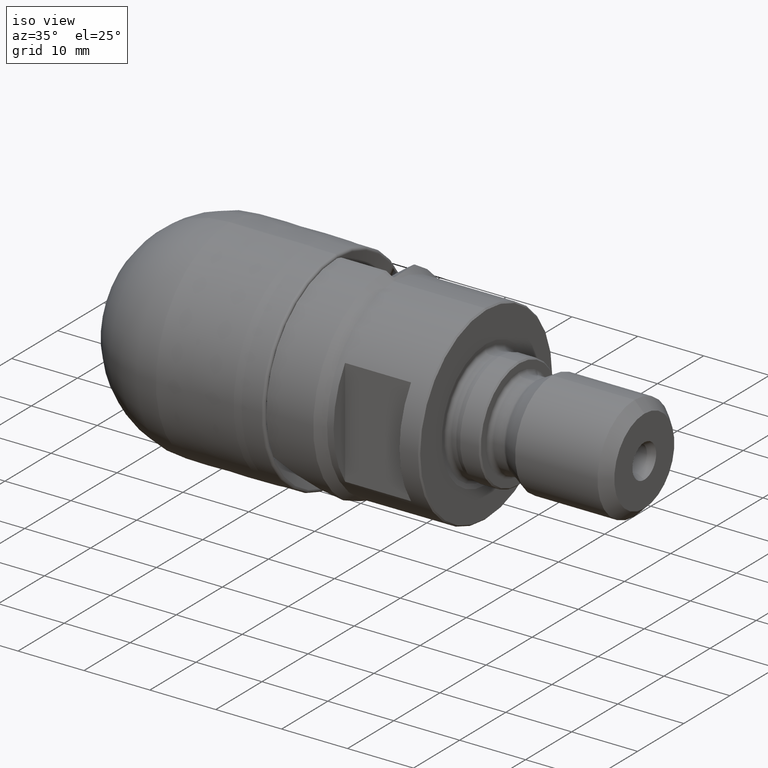
[diagram: clean part render]
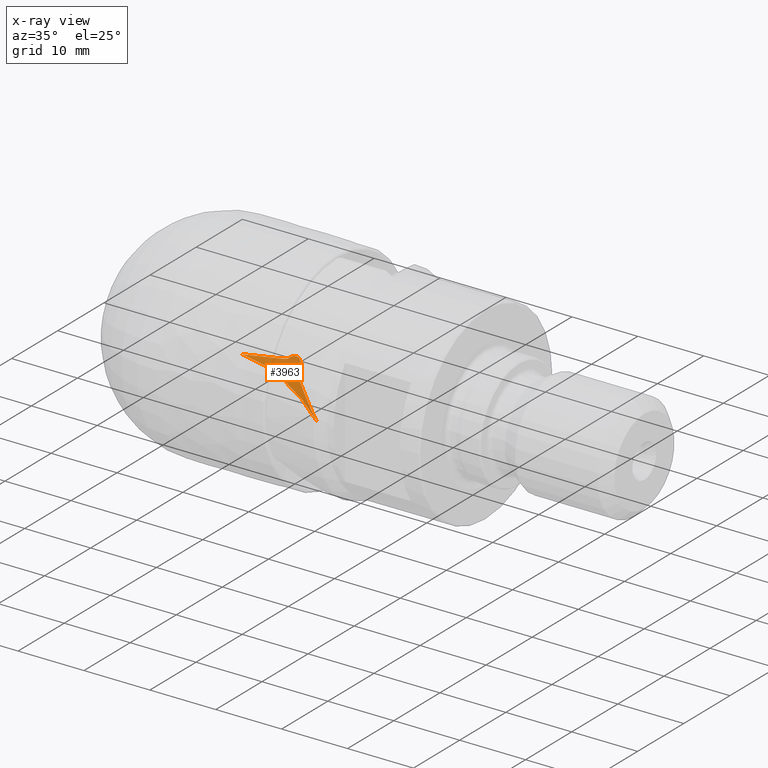
[diagram: x-ray — body ghosted, one internal face saturated and labeled with its STEP entity id]
A machine part, iso view, then the same camera in x-ray: the body is ghosted and one INTERNAL B-rep face — a face not visible from any outside direction — is saturated and labeled: STEP entity #3963.
In plain terms, the highlighted toroidal blend (fillet) surface has major radius 17.4608 mm and minor (blend) radius 15.8368 mm.
Its self-contained STEP definition (entity closure, byte-faithful):
#16 = CARTESIAN_POINT ( 'NONE',  ( 17.55565429103573294, 2.769534820510932249, -1.556511194266540610 ) ) ;
#65 = CARTESIAN_POINT ( 'NONE',  ( 13.00230363450138604, 0.4714883554706232327, -1.726817155689019501 ) ) ;
#85 = CARTESIAN_POINT ( 'NONE',  ( 17.25919833583427376, 2.442017771030029039, -1.807092347605215643 ) ) ;
#94 = DIRECTION ( 'NONE',  ( 0.0000000000000000000, -1.224646799147353207E-16, 1.000000000000000000 ) ) ;
#202 = CARTESIAN_POINT ( 'NONE',  ( 18.67776587723828641, 3.080988855967265128, -2.175901990318079182 ) ) ;
#212 = AXIS2_PLACEMENT_3D ( 'NONE', #3130, #3566, #94 ) ;
#260 = AXIS2_PLACEMENT_3D ( 'NONE', #1811, #1409, #2213 ) ;
#333 = CARTESIAN_POINT ( 'NONE',  ( 18.58401090703475589, 2.207001648660439574, -2.990069219774636355 ) ) ;
#337 = CARTESIAN_POINT ( 'NONE',  ( 17.98095912093262072, 3.043725441351983640, -1.485734467970545980 ) ) ;
#377 = CARTESIAN_POINT ( 'NONE',  ( 22.99824632191460694, 0.02635431146090463569, -7.443201034852172882 ) ) ;
#441 = CIRCLE ( 'NONE', #212, 15.83680652280630063 ) ;
#481 = CARTESIAN_POINT ( 'NONE',  ( 12.04930714525321989, -6.121626976022308307E-15, -1.680062948939793799 ) ) ;
#497 = CARTESIAN_POINT ( 'NONE',  ( 18.56713936065415993, 2.375370803855971324, -2.847542266732534966 ) ) ;
#545 = B_SPLINE_CURVE_WITH_KNOTS ( 'NONE', 3,
 ( #1271, #497, #1651, #2785, #1327, #2448, #202, #3966, #4310, #909 ),
 .UNSPECIFIED., .F., .F.,
 ( 4, 2, 2, 2, 4 ),
 ( 0.0001005699000597476720, 0.0005232917368739167579, 0.0009460135736880858574, 0.001368735410502254848, 0.001791457247316424056 ),
 .UNSPECIFIED. ) ;
#664 = TOROIDAL_SURFACE ( 'NONE', #260, 17.46083097347531066, 15.83680652280630063 ) ;
#786 = CARTESIAN_POINT ( 'NONE',  ( 17.38679587050087605, 2.612566696091439766, -1.663814258880377484 ) ) ;
#814 = CARTESIAN_POINT ( 'NONE',  ( 13.98551924463395224, 0.8824476089024586578, -1.754757986407633030 ) ) ;
#909 = CARTESIAN_POINT ( 'NONE',  ( 18.41075823380608512, 3.193053430549289473, -1.700868676920151978 ) ) ;
#1271 = CARTESIAN_POINT ( 'NONE',  ( 18.52737216682393040, 2.255657355766715444, -2.911768340376138298 ) ) ;
#1327 = CARTESIAN_POINT ( 'NONE',  ( 18.68076994880007646, 2.816629397455971962, -2.511929216957962563 ) ) ;
#1336 = EDGE_CURVE ( 'NONE', #1781, #4835, #441, .T. ) ;
#1386 = FACE_OUTER_BOUND ( 'NONE', #4726, .T. ) ;
#1409 = DIRECTION ( 'NONE',  ( -1.000000000000000000, -0.0000000000000000000, -0.0000000000000000000 ) ) ;
#1429 = CARTESIAN_POINT ( 'NONE',  ( 18.52737216682393040, 2.255657355766715444, -2.911768340376138298 ) ) ;
#1453 = CARTESIAN_POINT ( 'NONE',  ( 18.69415798215651137, 2.099414229999999826, -3.142343313673984451 ) ) ;
#1552 = B_SPLINE_CURVE_WITH_KNOTS ( 'NONE', 3,
 ( #2598, #1863, #3791, #2241 ),
 .UNSPECIFIED., .F., .F.,
 ( 4, 4 ),
 ( 3.808997781701988480E-07, 0.0006510057303477030698 ),
 .UNSPECIFIED. ) ;
#1651 = CARTESIAN_POINT ( 'NONE',  ( 18.60280525249420691, 2.490757344062767054, -2.774880363769625546 ) ) ;
#1781 = VERTEX_POINT ( 'NONE', #4036 ) ;
#1811 = CARTESIAN_POINT ( 'NONE',  ( 10.71821684155568022, 0.0000000000000000000, 0.0000000000000000000 ) ) ;
#1855 = CARTESIAN_POINT ( 'NONE',  ( 18.69415798215651137, 2.099414229999999826, -3.142343313673984451 ) ) ;
#1863 = CARTESIAN_POINT ( 'NONE',  ( 16.89194958320560858, 2.213288937172178006, -1.837931086989462948 ) ) ;
#1895 = EDGE_CURVE ( 'NONE', #3707, #2432, #3857, .T. ) ;
#1907 = CARTESIAN_POINT ( 'NONE',  ( 23.35366936332945187, 4.813422242895191721E-15, -7.913591560388354651 ) ) ;
#1938 = CARTESIAN_POINT ( 'NONE',  ( 18.41075823380608512, 3.193053430549289473, -1.700868676920151978 ) ) ;
#2173 = ORIENTED_EDGE ( 'NONE', *, *, #2378, .T. ) ;
#2213 = DIRECTION ( 'NONE',  ( 0.0000000000000000000, 0.0000000000000000000, 1.000000000000000000 ) ) ;
#2220 = ORIENTED_EDGE ( 'NONE', *, *, #1895, .F. ) ;
#2241 = CARTESIAN_POINT ( 'NONE',  ( 17.25919833583427376, 2.442017771030029039, -1.807092347605215643 ) ) ;
#2258 = CARTESIAN_POINT ( 'NONE',  ( 17.25919833583427376, 2.442017771030029039, -1.807092347605215643 ) ) ;
#2306 = CARTESIAN_POINT ( 'NONE',  ( 13.59066879848175091, 0.7216404841897520184, -1.744674717533344133 ) ) ;
#2378 = EDGE_CURVE ( 'NONE', #3707, #3919, #545, .T. ) ;
#2414 = EDGE_CURVE ( 'NONE', #3013, #4121, #1552, .T. ) ;
#2432 = VERTEX_POINT ( 'NONE', #4771 ) ;
#2448 = CARTESIAN_POINT ( 'NONE',  ( 18.68960705859550231, 3.001659522620258702, -2.296095678612260826 ) ) ;
#2598 = CARTESIAN_POINT ( 'NONE',  ( 16.70802353781989069, 2.099414229999999826, -1.853375788542172442 ) ) ;
#2617 = CARTESIAN_POINT ( 'NONE',  ( 19.08664033619742284, 1.916715321419638851, -3.539575203252820490 ) ) ;
#2622 = CARTESIAN_POINT ( 'NONE',  ( 17.31558136409111981, 2.529041028801364277, -1.732480238774312564 ) ) ;
#2692 = CARTESIAN_POINT ( 'NONE',  ( 12.42051126310444964, 0.2063074164989702197, -1.704366530647169142 ) ) ;
#2719 = CARTESIAN_POINT ( 'NONE',  ( 15.16538065326631468, 1.375592593215628767, -1.788285112952172184 ) ) ;
#2782 = B_SPLINE_CURVE_WITH_KNOTS ( 'NONE', 3,
 ( #481, #4633, #2692, #3898, #65, #2306, #814, #2719, #3531, #3424 ),
 .UNSPECIFIED., .F., .F.,
 ( 4, 2, 2, 2, 4 ),
 ( 0.0006137231817745392604, 0.001257679244841630305, 0.001901635307908721350, 0.003189547434042903223, 0.005765371686311271740 ),
 .UNSPECIFIED. ) ;
#2785 = CARTESIAN_POINT ( 'NONE',  ( 18.65941139924929004, 2.711205298640788630, -2.607220442274704730 ) ) ;
#2827 = ORIENTED_EDGE ( 'NONE', *, *, #4611, .T. ) ;
#2879 = B_SPLINE_CURVE_WITH_KNOTS ( 'NONE', 3,
 ( #1938, #3399, #3372, #337, #3422, #4887, #16, #786, #2622, #2258 ),
 .UNSPECIFIED., .F., .F.,
 ( 4, 2, 2, 2, 4 ),
 ( 0.001791457247316424056, 0.002170269884359574998, 0.002549082521402725940, 0.002927895158445876448, 0.003306707795489027390 ),
 .UNSPECIFIED. ) ;
#3013 = VERTEX_POINT ( 'NONE', #4142 ) ;
#3016 = CARTESIAN_POINT ( 'NONE',  ( 19.48207842780855259, 1.705885982467007622, -3.918512005473161697 ) ) ;
#3040 = CARTESIAN_POINT ( 'NONE',  ( 22.62594017906574706, 0.1236050614513477808, -7.005877268078275044 ) ) ;
#3091 = EDGE_CURVE ( 'NONE', #1781, #3013, #2782, .T. ) ;
#3130 = CARTESIAN_POINT ( 'NONE',  ( 10.71821684155568022, 2.138335076211950332E-15, -17.46083097347531066 ) ) ;
#3305 = ORIENTED_EDGE ( 'NONE', *, *, #4420, .F. ) ;
#3318 = CARTESIAN_POINT ( 'NONE',  ( 18.63963587391985754, 2.155018085188506571, -3.066968596551068682 ) ) ;
#3367 = CARTESIAN_POINT ( 'NONE',  ( 21.85874323014282794, 0.4176567434219783936, -6.179211945409154083 ) ) ;
#3372 = CARTESIAN_POINT ( 'NONE',  ( 18.20721495460750816, 3.143995532671642668, -1.551705747490049081 ) ) ;
#3391 = ORIENTED_EDGE ( 'NONE', *, *, #1336, .T. ) ;
#3399 = CARTESIAN_POINT ( 'NONE',  ( 18.31744066282417194, 3.181016955282264469, -1.613164396887017515 ) ) ;
#3422 = CARTESIAN_POINT ( 'NONE',  ( 17.86600668219558585, 2.980923957935125657, -1.481235901861488236 ) ) ;
#3424 = CARTESIAN_POINT ( 'NONE',  ( 16.70802353781989069, 2.099414229999999826, -1.853375788542172442 ) ) ;
#3531 = CARTESIAN_POINT ( 'NONE',  ( 15.94640605185181492, 1.718332653492461448, -1.814860718765866077 ) ) ;
#3566 = DIRECTION ( 'NONE',  ( -0.0000000000000000000, 1.000000000000000000, 1.224646799147353207E-16 ) ) ;
#3624 = CARTESIAN_POINT ( 'NONE',  ( 18.52737216682393040, 2.255657355766715444, -2.911768340376138298 ) ) ;
#3707 = VERTEX_POINT ( 'NONE', #3624 ) ;
#3784 = CARTESIAN_POINT ( 'NONE',  ( 21.46321708990607391, 0.6141633269637397641, -5.788757873424478007 ) ) ;
#3791 = CARTESIAN_POINT ( 'NONE',  ( 17.07586165369419362, 2.327189959239473804, -1.822487558941649155 ) ) ;
#3838 = CARTESIAN_POINT ( 'NONE',  ( 23.35366936332945187, 4.813422242895191721E-15, -7.913591560388354651 ) ) ;
#3857 = B_SPLINE_CURVE_WITH_KNOTS ( 'NONE', 3,
 ( #1429, #333, #3318, #1453 ),
 .UNSPECIFIED., .F., .F.,
 ( 4, 4 ),
 ( 0.0004763372725223274213, 0.0008008979202769611486 ),
 .UNSPECIFIED. ) ;
#3898 = CARTESIAN_POINT ( 'NONE',  ( 12.80682872095409408, 0.3866253747665782114, -1.720412646217125641 ) ) ;
#3919 = VERTEX_POINT ( 'NONE', #4700 ) ;
#3963 = ADVANCED_FACE ( 'NONE', ( #1386 ), #664, .T. ) ;
#3966 = CARTESIAN_POINT ( 'NONE',  ( 18.59110274066116730, 3.185669767796201590, -1.924571790287888051 ) ) ;
#4036 = CARTESIAN_POINT ( 'NONE',  ( 12.04930714525321989, -6.121626976022308307E-15, -1.680062948939793799 ) ) ;
#4121 = VERTEX_POINT ( 'NONE', #85 ) ;
#4125 = ORIENTED_EDGE ( 'NONE', *, *, #3091, .F. ) ;
#4142 = CARTESIAN_POINT ( 'NONE',  ( 16.70802353781989069, 2.099414229999999826, -1.853375788542172442 ) ) ;
#4158 = CARTESIAN_POINT ( 'NONE',  ( 20.67202067432414481, 1.038869729466672220, -5.032866406726486552 ) ) ;
#4310 = CARTESIAN_POINT ( 'NONE',  ( 18.51489249743683985, 3.206485086296994691, -1.798738997829877118 ) ) ;
#4420 = EDGE_CURVE ( 'NONE', #2432, #4835, #4757, .T. ) ;
#4550 = CARTESIAN_POINT ( 'NONE',  ( 20.27474901139339281, 1.267149585968291969, -4.665278835171466021 ) ) ;
#4611 = EDGE_CURVE ( 'NONE', #3919, #4121, #2879, .T. ) ;
#4633 = CARTESIAN_POINT ( 'NONE',  ( 12.22922429759076657, 0.1126245905827663457, -1.695238761458743415 ) ) ;
#4700 = CARTESIAN_POINT ( 'NONE',  ( 18.41075823380608512, 3.193053430549289473, -1.700868676920151978 ) ) ;
#4726 = EDGE_LOOP ( 'NONE', ( #4125, #3391, #3305, #2220, #2173, #2827, #4891 ) ) ;
#4757 = B_SPLINE_CURVE_WITH_KNOTS ( 'NONE', 3,
 ( #1855, #2617, #3016, #4550, #4158, #3784, #3367, #3040, #377, #1907 ),
 .UNSPECIFIED., .F., .F.,
 ( 4, 2, 2, 2, 4 ),
 ( 0.0004536693786117508608, 0.002214208999911731167, 0.003974748621211711581, 0.005735288242511691129, 0.007495827863811671543 ),
 .UNSPECIFIED. ) ;
#4771 = CARTESIAN_POINT ( 'NONE',  ( 18.69415798215651137, 2.099414229999999826, -3.142343313673984451 ) ) ;
#4835 = VERTEX_POINT ( 'NONE', #3838 ) ;
#4887 = CARTESIAN_POINT ( 'NONE',  ( 17.65384315357296785, 2.844518959105491795, -1.516141947753461006 ) ) ;
#4891 = ORIENTED_EDGE ( 'NONE', *, *, #2414, .F. ) ;